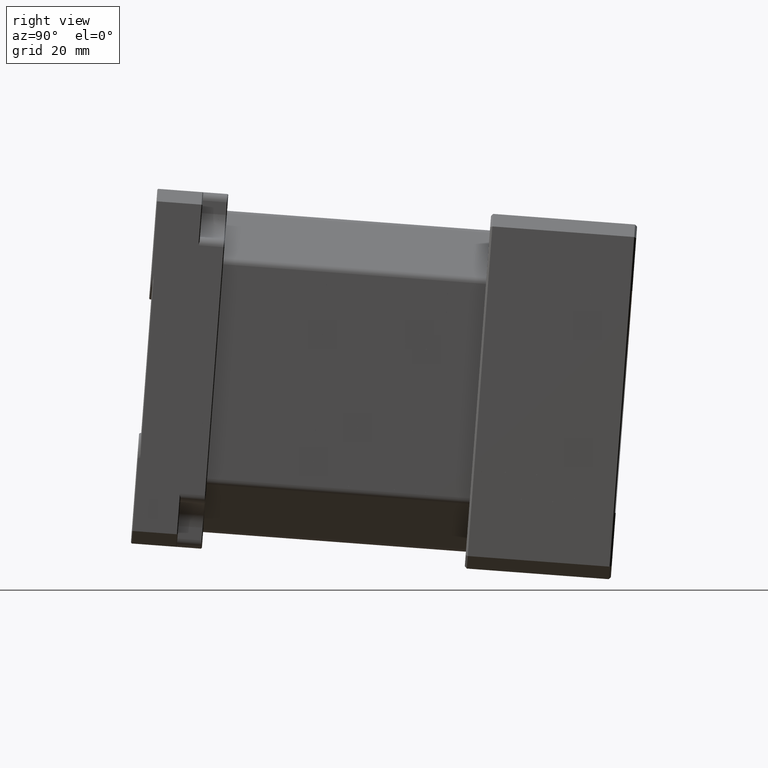
[diagram: clean part render]
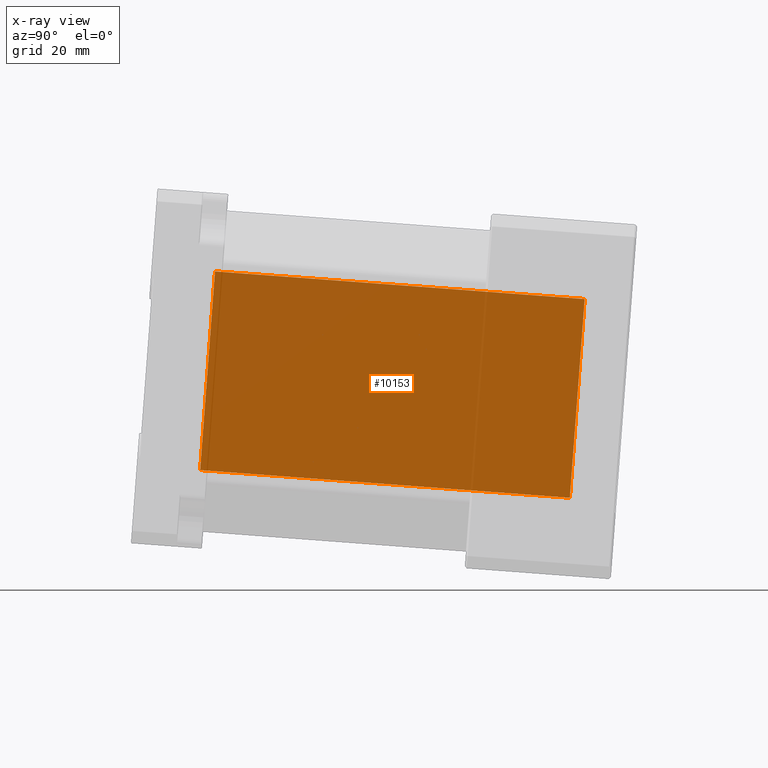
[diagram: x-ray — body ghosted, one internal face saturated and labeled with its STEP entity id]
A machine part, right view, then the same camera in x-ray: the body is ghosted and one INTERNAL B-rep face — a face not visible from any outside direction — is saturated and labeled: STEP entity #10153.
In plain terms, the highlighted planar face has unit normal (1, 0, 0).
Its self-contained STEP definition (entity closure, byte-faithful):
#406 = AXIS2_PLACEMENT_3D ( 'NONE', #54347, #15608, #5557 ) ;
#2891 = VERTEX_POINT ( 'NONE', #12382 ) ;
#5557 = DIRECTION ( 'NONE',  ( -9.098624631498361099E-16, 1.000000000000000000, 0.000000000000000000 ) ) ;
#7966 = VERTEX_POINT ( 'NONE', #65940 ) ;
#8872 = VECTOR ( 'NONE', #41001, 1000.000000000000114 ) ;
#8946 = CARTESIAN_POINT ( 'NONE',  ( 67.11464020910901240, -26.83103074481130079, -40.20703006455754291 ) ) ;
#9867 = ORIENTED_EDGE ( 'NONE', *, *, #56233, .T. ) ;
#10153 = ADVANCED_FACE ( 'NONE', ( #59037 ), #31768, .T. ) ;
#12382 = CARTESIAN_POINT ( 'NONE',  ( 67.11464020910889872, -23.27933081354474965, 7.275545208546690290 ) ) ;
#12630 = LINE ( 'NONE', #51023, #53842 ) ;
#13874 = EDGE_LOOP ( 'NONE', ( #52773, #56723, #14879, #9867 ) ) ;
#14879 = ORIENTED_EDGE ( 'NONE', *, *, #31112, .T. ) ;
#15608 = DIRECTION ( 'NONE',  ( 1.000000000000000000, 9.098624631498361099E-16, 1.665334536937734811E-16 ) ) ;
#23514 = LINE ( 'NONE', #66254, #43953 ) ;
#25826 = VERTEX_POINT ( 'NONE', #8946 ) ;
#27455 = EDGE_CURVE ( 'NONE', #62410, #2891, #69872, .T. ) ;
#31112 = EDGE_CURVE ( 'NONE', #2891, #25826, #23514, .T. ) ;
#31768 = PLANE ( 'NONE',  #406 ) ;
#33696 = VECTOR ( 'NONE', #69176, 1000.000000000000114 ) ;
#34937 = CARTESIAN_POINT ( 'NONE',  ( 67.11464020910889872, 61.52214379158569102, -46.81585366191309561 ) ) ;
#41001 = DIRECTION ( 'NONE',  ( -8.949057200030818454E-16, 0.9972141595530138458, -0.07459168845773737899 ) ) ;
#43953 = VECTOR ( 'NONE', #67655, 1000.000000000000114 ) ;
#46514 = CARTESIAN_POINT ( 'NONE',  ( 67.11464020910889872, 65.07384372285220309, 0.6667216111911550280 ) ) ;
#51023 = CARTESIAN_POINT ( 'NONE',  ( 67.11464020910889872, 65.16653438985079561, 1.905900499623190081 ) ) ;
#52773 = ORIENTED_EDGE ( 'NONE', *, *, #64342, .T. ) ;
#53842 = VECTOR ( 'NONE', #61796, 1000.000000000000114 ) ;
#54347 = CARTESIAN_POINT ( 'NONE',  ( 67.11464020910889872, 61.62889595649780006, -48.06995088803670058 ) ) ;
#56233 = EDGE_CURVE ( 'NONE', #25826, #7966, #67972, .T. ) ;
#56723 = ORIENTED_EDGE ( 'NONE', *, *, #27455, .T. ) ;
#58041 = CARTESIAN_POINT ( 'NONE',  ( 67.11464020910889872, -23.27933081354474965, 7.275545208546690290 ) ) ;
#59037 = FACE_OUTER_BOUND ( 'NONE', #13874, .T. ) ;
#61796 = DIRECTION ( 'NONE',  ( -2.339376954533594784E-16, 0.07459168845773737899, 0.9972141595530138458 ) ) ;
#62410 = VERTEX_POINT ( 'NONE', #46514 ) ;
#64342 = EDGE_CURVE ( 'NONE', #7966, #62410, #12630, .T. ) ;
#65940 = CARTESIAN_POINT ( 'NONE',  ( 67.11464020910889872, 61.52214379158569102, -46.81585366191309561 ) ) ;
#66254 = CARTESIAN_POINT ( 'NONE',  ( 67.11464020910901240, -26.92372141180980094, -41.44620895298960050 ) ) ;
#67655 = DIRECTION ( 'NONE',  ( 2.339376954533594784E-16, -0.07459168845773737899, -0.9972141595530138458 ) ) ;
#67972 = LINE ( 'NONE', #34937, #8872 ) ;
#69176 = DIRECTION ( 'NONE',  ( 8.949057200030818454E-16, -0.9972141595530138458, 0.07459168845773737899 ) ) ;
#69872 = LINE ( 'NONE', #58041, #33696 ) ;